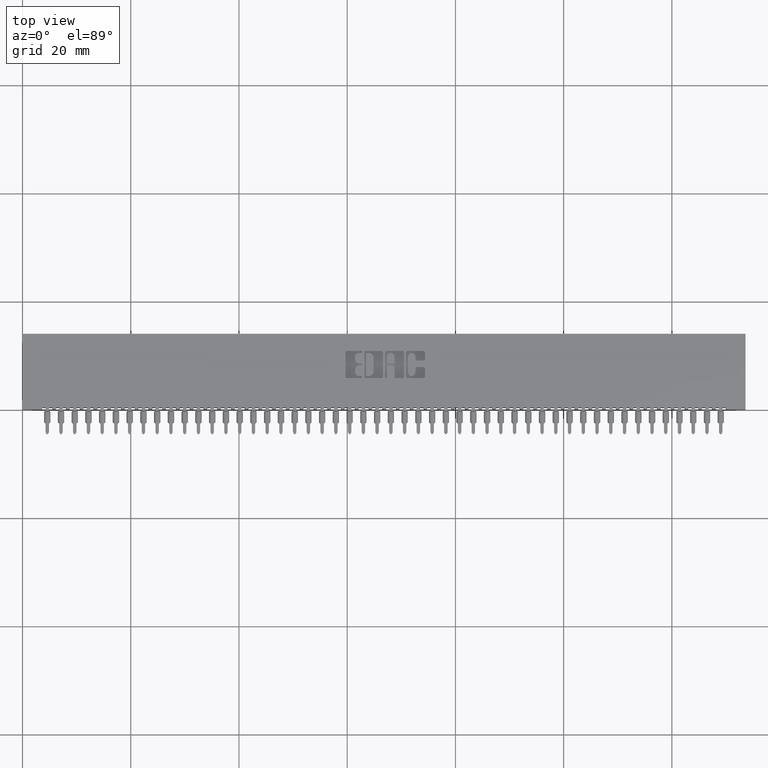
[diagram: clean part render]
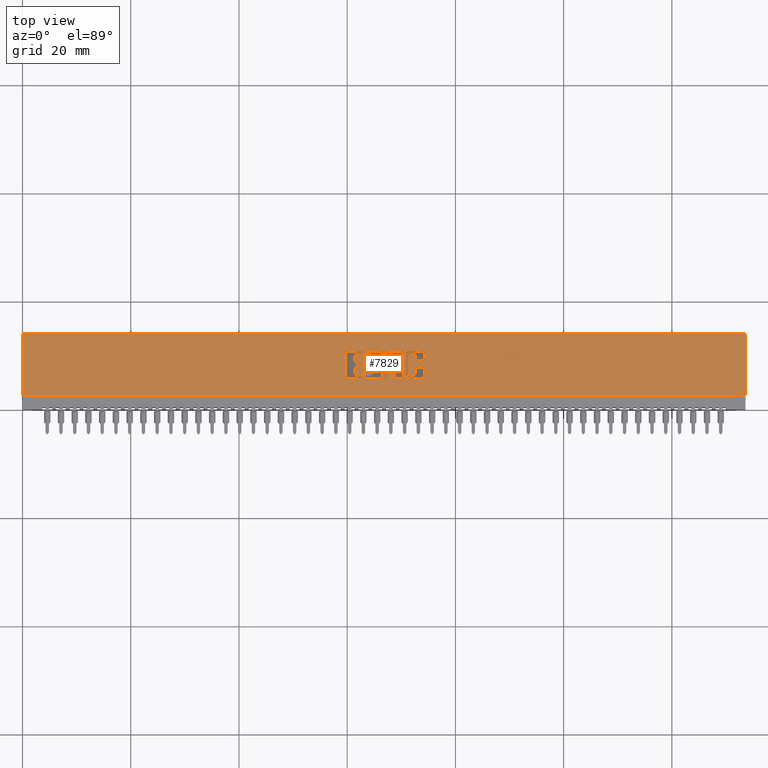
[diagram: same view with one face highlighted and labeled with its STEP entity id]
A machine part, top view. The second image highlights one B-rep face of the part: STEP entity #7829.
In plain terms, the highlighted planar face has unit normal (0, 0, -1).
Its self-contained STEP definition (entity closure, byte-faithful):
#12 = VERTEX_POINT ( 'NONE', #27577 ) ;
#53 = EDGE_CURVE ( 'NONE', #18621, #21375, #10259, .T. ) ;
#67 = LINE ( 'NONE', #48552, #47160 ) ;
#532 = CARTESIAN_POINT ( 'NONE',  ( 2.867293827176977700, 0.3539562271012337000, 0.0000000000000000000 ) ) ;
#541 = EDGE_CURVE ( 'NONE', #45024, #77650, #23202, .T. ) ;
#690 = CIRCLE ( 'NONE', #82809, 0.009815670203841313900 ) ;
#717 = ORIENTED_EDGE ( 'NONE', *, *, #53, .T. ) ;
#791 = LINE ( 'NONE', #67100, #17856 ) ;
#817 = VECTOR ( 'NONE', #43794, 39.37007874015748100 ) ;
#913 = CARTESIAN_POINT ( 'NONE',  ( -0.0000000000000000000, 0.4094147637527357800, 0.0000000000000000000 ) ) ;
#932 = EDGE_CURVE ( 'NONE', #53338, #23581, #74230, .T. ) ;
#1858 = CIRCLE ( 'NONE', #66016, 0.009815670203787221800 ) ;
#1865 = ORIENTED_EDGE ( 'NONE', *, *, #4194, .F. ) ;
#2072 = CARTESIAN_POINT ( 'NONE',  ( 2.916862961706131700, 0.4133410318342110000, 0.0000000000000000000 ) ) ;
#2151 = CIRCLE ( 'NONE', #47221, 0.009815670203806891800 ) ;
#2264 = VERTEX_POINT ( 'NONE', #80862 ) ;
#2414 = EDGE_CURVE ( 'NONE', #7104, #49227, #70977, .T. ) ;
#2612 = DIRECTION ( 'NONE',  ( -0.0000000000000000000, 0.0000000000000000000, 1.000000000000000000 ) ) ;
#2639 = DIRECTION ( 'NONE',  ( 1.000000000000000000, 0.0000000000000000000, 0.0000000000000000000 ) ) ;
#2822 = FACE_BOUND ( 'NONE', #13797, .T. ) ;
#3226 = EDGE_CURVE ( 'NONE', #79059, #74128, #72793, .T. ) ;
#3297 = CARTESIAN_POINT ( 'NONE',  ( 2.638588711428330800, 0.4133410318342102300, 0.0000000000000000000 ) ) ;
#3464 = VECTOR ( 'NONE', #50230, 39.37007874015748100 ) ;
#3738 = DIRECTION ( 'NONE',  ( -1.000000000000000000, -0.0000000000000000000, -0.0000000000000000000 ) ) ;
#3841 = CARTESIAN_POINT ( 'NONE',  ( 2.638588711428330800, 0.2337142671046480400, 0.0000000000000000000 ) ) ;
#3968 = VECTOR ( 'NONE', #35658, 39.37007874015748100 ) ;
#4194 = EDGE_CURVE ( 'NONE', #35465, #41655, #27696, .T. ) ;
#4646 = CARTESIAN_POINT ( 'NONE',  ( 2.867293827176966600, 0.2965345564089696400, 0.0000000000000000000 ) ) ;
#4871 = AXIS2_PLACEMENT_3D ( 'NONE', #4646, #49448, #11138 ) ;
#5083 = CARTESIAN_POINT ( 'NONE',  ( 2.463133606535309500, 0.3250000000000204400, 0.0000000000000000000 ) ) ;
#5296 = CARTESIAN_POINT ( 'NONE',  ( 2.857478156973178900, 0.0000000000000000000, 0.0000000000000000000 ) ) ;
#5301 = VERTEX_POINT ( 'NONE', #82969 ) ;
#5583 = CARTESIAN_POINT ( 'NONE',  ( 5.259999999999999800, 0.1000000000000000100, 0.0000000000000000000 ) ) ;
#5764 = ORIENTED_EDGE ( 'NONE', *, *, #54484, .F. ) ;
#5771 = CIRCLE ( 'NONE', #5782, 0.009815670203806891800 ) ;
#5782 = AXIS2_PLACEMENT_3D ( 'NONE', #52295, #13992, #58752 ) ;
#5790 = CARTESIAN_POINT ( 'NONE',  ( -2.860952991547128200E-014, 0.2405852362470173600, 0.0000000000000000000 ) ) ;
#5810 = DIRECTION ( 'NONE',  ( 0.0000000000000000000, -1.000000000000000000, 0.0000000000000000000 ) ) ;
#6198 = CARTESIAN_POINT ( 'NONE',  ( 2.704844485303985000, 0.3083133606535435300, 0.0000000000000000000 ) ) ;
#6397 = CARTESIAN_POINT ( 'NONE',  ( 2.926678631909940300, 0.2366589681657830500, 0.0000000000000000000 ) ) ;
#6713 = CARTESIAN_POINT ( 'NONE',  ( -0.0000000000000000000, 0.2268432979619832700, 0.0000000000000000000 ) ) ;
#7078 = EDGE_LOOP ( 'NONE', ( #55637, #13725, #54963, #58001, #82972, #23938, #16235, #46470, #33435, #80120, #31734, #37773, #44824, #64606, #70877, #12842, #66960, #76857, #62875, #23127, #57349 ) ) ;
#7104 = VERTEX_POINT ( 'NONE', #82610 ) ;
#7124 = CARTESIAN_POINT ( 'NONE',  ( 2.916862961706133900, 0.2366589681657900200, 0.0000000000000000000 ) ) ;
#7368 = DIRECTION ( 'NONE',  ( -0.0000000000000000000, 0.0000000000000000000, 1.000000000000000000 ) ) ;
#7373 = DIRECTION ( 'NONE',  ( 1.000000000000000000, 0.0000000000000000000, 0.0000000000000000000 ) ) ;
#7394 = AXIS2_PLACEMENT_3D ( 'NONE', #7124, #51905, #13583 ) ;
#7593 = VECTOR ( 'NONE', #45985, 39.37007874015748100 ) ;
#7722 = CIRCLE ( 'NONE', #57889, 0.03141014465215637200 ) ;
#7829 = ADVANCED_FACE ( 'NONE', ( #21894, #70993, #36905, #19911, #2822 ), #44953, .F. ) ;
#7932 = DIRECTION ( 'NONE',  ( -0.0000000000000000000, 0.0000000000000000000, 1.000000000000000000 ) ) ;
#8040 = EDGE_CURVE ( 'NONE', #51241, #36680, #69931, .T. ) ;
#8106 = DIRECTION ( 'NONE',  ( -0.0000000000000000000, 0.0000000000000000000, 1.000000000000000000 ) ) ;
#8199 = CARTESIAN_POINT ( 'NONE',  ( 2.831221239177998500, 0.2668421540424530900, 0.0000000000000000000 ) ) ;
#8286 = CARTESIAN_POINT ( 'NONE',  ( 2.804964321382818600, 0.2668421540424530900, 0.0000000000000000000 ) ) ;
#8418 = EDGE_CURVE ( 'NONE', #60129, #29652, #7722, .T. ) ;
#8521 = DIRECTION ( 'NONE',  ( 1.000000000000000000, 0.0000000000000000000, 0.0000000000000000000 ) ) ;
#9023 = CARTESIAN_POINT ( 'NONE',  ( 0.0000000000000000000, 0.1000000000000000100, 0.0000000000000000000 ) ) ;
#9072 = EDGE_CURVE ( 'NONE', #42786, #65845, #36661, .T. ) ;
#9097 = ORIENTED_EDGE ( 'NONE', *, *, #73817, .F. ) ;
#9268 = EDGE_CURVE ( 'NONE', #24916, #65616, #73709, .T. ) ;
#9449 = DIRECTION ( 'NONE',  ( -0.0000000000000000000, 0.0000000000000000000, 1.000000000000000000 ) ) ;
#9567 = CARTESIAN_POINT ( 'NONE',  ( 2.463133606535351300, 0.4094147637527357800, 0.0000000000000000000 ) ) ;
#10128 = DIRECTION ( 'NONE',  ( -0.0000000000000000000, 0.0000000000000000000, 1.000000000000000000 ) ) ;
#10234 = VERTEX_POINT ( 'NONE', #77711 ) ;
#10259 = CIRCLE ( 'NONE', #42396, 0.02625691779518049900 ) ;
#10367 = AXIS2_PLACEMENT_3D ( 'NONE', #40974, #2612, #47436 ) ;
#10570 = DIRECTION ( 'NONE',  ( -0.0000000000000000000, 0.0000000000000000000, 1.000000000000000000 ) ) ;
#10661 = EDGE_CURVE ( 'NONE', #39530, #12276, #14326, .T. ) ;
#10713 = CARTESIAN_POINT ( 'NONE',  ( 2.804964321382818600, 0.0000000000000000000, 0.0000000000000000000 ) ) ;
#10833 = CARTESIAN_POINT ( 'NONE',  ( 2.463133606535335300, 0.2337142671046480400, 0.0000000000000000000 ) ) ;
#10965 = VERTEX_POINT ( 'NONE', #53738 ) ;
#11013 = ORIENTED_EDGE ( 'NONE', *, *, #932, .F. ) ;
#11017 = VERTEX_POINT ( 'NONE', #28606 ) ;
#11138 = DIRECTION ( 'NONE',  ( 1.000000000000000000, 0.0000000000000000000, 0.0000000000000000000 ) ) ;
#11191 = VERTEX_POINT ( 'NONE', #30498 ) ;
#11411 = CARTESIAN_POINT ( 'NONE',  ( 2.449637060005109400, 0.2405852362473086800, 0.0000000000000000000 ) ) ;
#11527 = CIRCLE ( 'NONE', #64938, 0.009815670203806891800 ) ;
#11572 = DIRECTION ( 'NONE',  ( 1.000000000000000000, 0.0000000000000000000, 0.0000000000000000000 ) ) ;
#11614 = DIRECTION ( 'NONE',  ( 0.0000000000000000000, -1.000000000000000000, 0.0000000000000000000 ) ) ;
#11679 = CIRCLE ( 'NONE', #70595, 0.009815670203795418300 ) ;
#11852 = LINE ( 'NONE', #37381, #817 ) ;
#12076 = VERTEX_POINT ( 'NONE', #53513 ) ;
#12276 = VERTEX_POINT ( 'NONE', #30010 ) ;
#12577 = DIRECTION ( 'NONE',  ( 0.0000000000000000000, -1.000000000000000000, 0.0000000000000000000 ) ) ;
#12650 = ORIENTED_EDGE ( 'NONE', *, *, #58298, .F. ) ;
#12842 = ORIENTED_EDGE ( 'NONE', *, *, #45557, .F. ) ;
#12917 = LINE ( 'NONE', #38828, #44931 ) ;
#12973 = EDGE_CURVE ( 'NONE', #36680, #51058, #55690, .T. ) ;
#12979 = EDGE_CURVE ( 'NONE', #17987, #68958, #38685, .T. ) ;
#13010 = EDGE_LOOP ( 'NONE', ( #32709, #71527, #58701, #66828, #39765, #34679, #82830, #11013 ) ) ;
#13047 = LINE ( 'NONE', #6713, #28106 ) ;
#13176 = DIRECTION ( 'NONE',  ( 1.000000000000000000, 0.0000000000000000000, 0.0000000000000000000 ) ) ;
#13583 = DIRECTION ( 'NONE',  ( 1.000000000000000000, 0.0000000000000000000, 0.0000000000000000000 ) ) ;
#13639 = DIRECTION ( 'NONE',  ( -0.0000000000000000000, -1.000000000000000000, -0.0000000000000000000 ) ) ;
#13725 = ORIENTED_EDGE ( 'NONE', *, *, #66081, .F. ) ;
#13777 = DIRECTION ( 'NONE',  ( -0.0000000000000000000, 0.0000000000000000000, 1.000000000000000000 ) ) ;
#13797 = EDGE_LOOP ( 'NONE', ( #68317, #41214, #19842, #12650, #66624, #20623, #16892, #37168, #52639, #63734, #26588, #21617, #81145, #43163 ) ) ;
#13808 = CARTESIAN_POINT ( 'NONE',  ( 2.611595618367896300, 0.4231567020380511100, 0.0000000000000000000 ) ) ;
#13917 = CARTESIAN_POINT ( 'NONE',  ( 2.648404381632127400, 0.4133410318342102300, 0.0000000000000000000 ) ) ;
#13959 = CARTESIAN_POINT ( 'NONE',  ( 5.259999999999999800, 0.5500000000000000400, 0.0000000000000000000 ) ) ;
#13992 = DIRECTION ( 'NONE',  ( -0.0000000000000000000, 0.0000000000000000000, 1.000000000000000000 ) ) ;
#14057 = EDGE_CURVE ( 'NONE', #18621, #10965, #70709, .T. ) ;
#14081 = CARTESIAN_POINT ( 'NONE',  ( 0.0000000000000000000, 0.5500000000000000400, 0.0000000000000000000 ) ) ;
#14295 = CARTESIAN_POINT ( 'NONE',  ( 2.648404381632127400, 0.4231567020380067000, 0.0000000000000000000 ) ) ;
#14299 = EDGE_CURVE ( 'NONE', #74243, #30661, #69656, .T. ) ;
#14326 = LINE ( 'NONE', #50408, #46379 ) ;
#14327 = VERTEX_POINT ( 'NONE', #32493 ) ;
#14352 = AXIS2_PLACEMENT_3D ( 'NONE', #69479, #31129, #75936 ) ;
#14417 = EDGE_CURVE ( 'NONE', #21115, #65845, #57560, .T. ) ;
#14697 = VERTEX_POINT ( 'NONE', #16105 ) ;
#14714 = ORIENTED_EDGE ( 'NONE', *, *, #26605, .F. ) ;
#15046 = ORIENTED_EDGE ( 'NONE', *, *, #60041, .F. ) ;
#15194 = VECTOR ( 'NONE', #3738, 39.37007874015748100 ) ;
#15357 = VERTEX_POINT ( 'NONE', #16271 ) ;
#15585 = LINE ( 'NONE', #35336, #81683 ) ;
#16105 = CARTESIAN_POINT ( 'NONE',  ( 2.485955039759169000, 0.4133410318342102300, 0.0000000000000000000 ) ) ;
#16235 = ORIENTED_EDGE ( 'NONE', *, *, #16549, .F. ) ;
#16271 = CARTESIAN_POINT ( 'NONE',  ( 2.463133606535351300, 0.4231567020380327900, 0.0000000000000000000 ) ) ;
#16539 = VECTOR ( 'NONE', #50088, 39.37007874015748100 ) ;
#16549 = EDGE_CURVE ( 'NONE', #60129, #17131, #67, .T. ) ;
#16552 = VECTOR ( 'NONE', #31954, 39.37007874015748100 ) ;
#16892 = ORIENTED_EDGE ( 'NONE', *, *, #67808, .T. ) ;
#16965 = AXIS2_PLACEMENT_3D ( 'NONE', #48924, #10570, #55310 ) ;
#17012 = EDGE_CURVE ( 'NONE', #11017, #55537, #17054, .T. ) ;
#17054 = LINE ( 'NONE', #913, #7593 ) ;
#17131 = VERTEX_POINT ( 'NONE', #28366 ) ;
#17150 = DIRECTION ( 'NONE',  ( 0.0000000000000000000, 1.000000000000000000, -0.0000000000000000000 ) ) ;
#17159 = CARTESIAN_POINT ( 'NONE',  ( 2.764229290037011600, 0.4133410318342105000, 0.0000000000000000000 ) ) ;
#17183 = CIRCLE ( 'NONE', #31061, 0.009815670203795964800 ) ;
#17258 = DIRECTION ( 'NONE',  ( 1.000000000000000000, 0.0000000000000000000, 0.0000000000000000000 ) ) ;
#17403 = CARTESIAN_POINT ( 'NONE',  ( 5.259999999999999800, 0.5500000000000000400, 0.0000000000000000000 ) ) ;
#17628 = VERTEX_POINT ( 'NONE', #74832 ) ;
#17678 = EDGE_CURVE ( 'NONE', #30661, #53338, #33719, .T. ) ;
#17856 = VECTOR ( 'NONE', #28766, 39.37007874015748100 ) ;
#17987 = VERTEX_POINT ( 'NONE', #21041 ) ;
#18357 = CARTESIAN_POINT ( 'NONE',  ( 2.857478156973178900, 0.2965345564089687500, 0.0000000000000000000 ) ) ;
#18489 = EDGE_CURVE ( 'NONE', #61355, #11191, #62599, .T. ) ;
#18621 = VERTEX_POINT ( 'NONE', #8286 ) ;
#18719 = AXIS2_PLACEMENT_3D ( 'NONE', #70868, #32474, #77298 ) ;
#18931 = ORIENTED_EDGE ( 'NONE', *, *, #54984, .F. ) ;
#19194 = VERTEX_POINT ( 'NONE', #20299 ) ;
#19216 = EDGE_LOOP ( 'NONE', ( #19325, #18931, #38630, #76746 ) ) ;
#19325 = ORIENTED_EDGE ( 'NONE', *, *, #54481, .T. ) ;
#19500 = VERTEX_POINT ( 'NONE', #42294 ) ;
#19530 = CARTESIAN_POINT ( 'NONE',  ( 0.0000000000000000000, 0.5500000000000000400, 0.0000000000000000000 ) ) ;
#19541 = CARTESIAN_POINT ( 'NONE',  ( 2.704844485303985000, 0.2366589681657879100, 0.0000000000000000000 ) ) ;
#19721 = VECTOR ( 'NONE', #22489, 39.37007874015748100 ) ;
#19828 = DIRECTION ( 'NONE',  ( 0.0000000000000000000, -1.000000000000000000, 0.0000000000000000000 ) ) ;
#19842 = ORIENTED_EDGE ( 'NONE', *, *, #55106, .T. ) ;
#19911 = FACE_BOUND ( 'NONE', #13010, .T. ) ;
#20299 = CARTESIAN_POINT ( 'NONE',  ( 2.916862961706133900, 0.2268432979619832700, 0.0000000000000000000 ) ) ;
#20363 = DIRECTION ( 'NONE',  ( 1.000000000000000000, 0.0000000000000000000, 0.0000000000000000000 ) ) ;
#20594 = VECTOR ( 'NONE', #40066, 39.37007874015748100 ) ;
#20623 = ORIENTED_EDGE ( 'NONE', *, *, #9072, .F. ) ;
#20857 = LINE ( 'NONE', #53065, #69925 ) ;
#21041 = CARTESIAN_POINT ( 'NONE',  ( 2.652330649713647000, 0.3083133606535456400, 0.0000000000000000000 ) ) ;
#21115 = VERTEX_POINT ( 'NONE', #61138 ) ;
#21375 = VERTEX_POINT ( 'NONE', #70101 ) ;
#21617 = ORIENTED_EDGE ( 'NONE', *, *, #77831, .F. ) ;
#21689 = VECTOR ( 'NONE', #69976, 39.37007874015748100 ) ;
#21894 = FACE_BOUND ( 'NONE', #39366, .T. ) ;
#22489 = DIRECTION ( 'NONE',  ( 0.0000000000000000000, 1.000000000000000000, -0.0000000000000000000 ) ) ;
#22514 = VERTEX_POINT ( 'NONE', #70218 ) ;
#22600 = CARTESIAN_POINT ( 'NONE',  ( 2.470004575677999800, 0.4162857328953863400, 0.0000000000000000000 ) ) ;
#23127 = ORIENTED_EDGE ( 'NONE', *, *, #70909, .F. ) ;
#23188 = DIRECTION ( 'NONE',  ( -0.0000000000000000000, 0.0000000000000000000, 1.000000000000000000 ) ) ;
#23202 = CIRCLE ( 'NONE', #4871, 0.009815670203787768200 ) ;
#23275 = CIRCLE ( 'NONE', #64302, 0.006870969142662365600 ) ;
#23581 = VERTEX_POINT ( 'NONE', #77008 ) ;
#23586 = DIRECTION ( 'NONE',  ( 1.000000000000000000, 0.0000000000000000000, 0.0000000000000000000 ) ) ;
#23767 = AXIS2_PLACEMENT_3D ( 'NONE', #66552, #28226, #73002 ) ;
#23803 = CIRCLE ( 'NONE', #18719, 0.009815670203805252500 ) ;
#23849 = ORIENTED_EDGE ( 'NONE', *, *, #541, .F. ) ;
#23938 = ORIENTED_EDGE ( 'NONE', *, *, #48788, .F. ) ;
#24065 = VERTEX_POINT ( 'NONE', #30429 ) ;
#24148 = CIRCLE ( 'NONE', #58250, 0.009815670203840221000 ) ;
#24395 = DIRECTION ( 'NONE',  ( -0.0000000000000000000, 0.0000000000000000000, 1.000000000000000000 ) ) ;
#24520 = ORIENTED_EDGE ( 'NONE', *, *, #72817, .F. ) ;
#24586 = LINE ( 'NONE', #17403, #39567 ) ;
#24644 = LINE ( 'NONE', #75506, #58679 ) ;
#24905 = DIRECTION ( 'NONE',  ( -0.0000000000000000000, 0.0000000000000000000, 1.000000000000000000 ) ) ;
#24916 = VERTEX_POINT ( 'NONE', #32534 ) ;
#24959 = DIRECTION ( 'NONE',  ( -0.0000000000000000000, 0.0000000000000000000, 1.000000000000000000 ) ) ;
#24987 = CARTESIAN_POINT ( 'NONE',  ( 2.418226915352909700, 0.3780046191005198600, 0.0000000000000000000 ) ) ;
#25189 = AXIS2_PLACEMENT_3D ( 'NONE', #79364, #40997, #2639 ) ;
#25586 = DIRECTION ( 'NONE',  ( -0.0000000000000000000, 0.0000000000000000000, 1.000000000000000000 ) ) ;
#25623 = VERTEX_POINT ( 'NONE', #65523 ) ;
#25742 = EDGE_CURVE ( 'NONE', #70202, #12076, #43314, .T. ) ;
#25778 = CARTESIAN_POINT ( 'NONE',  ( 2.867293827176966600, 0.3063502266127576300, 0.0000000000000000000 ) ) ;
#25985 = DIRECTION ( 'NONE',  ( -1.000000000000000000, 0.0000000000000000000, -0.0000000000000000000 ) ) ;
#26166 = EDGE_CURVE ( 'NONE', #22514, #49227, #58257, .T. ) ;
#26202 = VERTEX_POINT ( 'NONE', #49181 ) ;
#26588 = ORIENTED_EDGE ( 'NONE', *, *, #12979, .T. ) ;
#26592 = LINE ( 'NONE', #43815, #3464 ) ;
#26605 = EDGE_CURVE ( 'NONE', #11191, #62598, #24148, .T. ) ;
#26846 = CARTESIAN_POINT ( 'NONE',  ( 2.916862961706156600, 0.3063502266127576300, 0.0000000000000000000 ) ) ;
#27577 = CARTESIAN_POINT ( 'NONE',  ( 2.801038053301265300, 0.2268432979619832700, 0.0000000000000000000 ) ) ;
#27696 = LINE ( 'NONE', #72209, #76750 ) ;
#27809 = DIRECTION ( 'NONE',  ( -0.0000000000000000000, 0.0000000000000000000, 1.000000000000000000 ) ) ;
#28014 = VERTEX_POINT ( 'NONE', #22600 ) ;
#28106 = VECTOR ( 'NONE', #13176, 39.37007874015748100 ) ;
#28226 = DIRECTION ( 'NONE',  ( -0.0000000000000000000, 0.0000000000000000000, 1.000000000000000000 ) ) ;
#28287 = CARTESIAN_POINT ( 'NONE',  ( -0.0000000000000000000, 0.2268432979619832700, 0.0000000000000000000 ) ) ;
#28366 = CARTESIAN_POINT ( 'NONE',  ( 2.463133606415388600, 0.3181290308573568900, 0.0000000000000000000 ) ) ;
#28606 = CARTESIAN_POINT ( 'NONE',  ( 2.449637060005125400, 0.4094147637527357800, 0.0000000000000000000 ) ) ;
#28760 = DIRECTION ( 'NONE',  ( -0.0000000000000000000, 0.0000000000000000000, 1.000000000000000000 ) ) ;
#28766 = DIRECTION ( 'NONE',  ( 1.000000000000000000, 0.0000000000000000000, 0.0000000000000000000 ) ) ;
#28922 = CARTESIAN_POINT ( 'NONE',  ( 2.621411288571669400, 0.4133410318342102300, 0.0000000000000000000 ) ) ;
#29222 = AXIS2_PLACEMENT_3D ( 'NONE', #13917, #58673, #20363 ) ;
#29233 = CARTESIAN_POINT ( 'NONE',  ( 2.704844485303985000, 0.0000000000000000000, 0.0000000000000000000 ) ) ;
#29652 = VERTEX_POINT ( 'NONE', #37729 ) ;
#29784 = EDGE_CURVE ( 'NONE', #15357, #19500, #12917, .T. ) ;
#30010 = CARTESIAN_POINT ( 'NONE',  ( 2.764229290037013800, 0.4231567020380067000, 0.0000000000000000000 ) ) ;
#30429 = CARTESIAN_POINT ( 'NONE',  ( 2.349026440416115400, 0.4133410318342102300, 0.0000000000000000000 ) ) ;
#30498 = CARTESIAN_POINT ( 'NONE',  ( 2.926678631909972200, 0.4133410318341949100, 0.0000000000000000000 ) ) ;
#30592 = VERTEX_POINT ( 'NONE', #40347 ) ;
#30661 = VERTEX_POINT ( 'NONE', #28922 ) ;
#31038 = CARTESIAN_POINT ( 'NONE',  ( 2.485955039759169000, 0.2366589681657900200, 0.0000000000000000000 ) ) ;
#31061 = AXIS2_PLACEMENT_3D ( 'NONE', #74592, #36225, #81026 ) ;
#31110 = AXIS2_PLACEMENT_3D ( 'NONE', #66131, #27809, #72564 ) ;
#31129 = DIRECTION ( 'NONE',  ( -0.0000000000000000000, 0.0000000000000000000, 1.000000000000000000 ) ) ;
#31278 = DIRECTION ( 'NONE',  ( -1.000000000000000000, -1.189163988687022500E-013, 0.0000000000000000000 ) ) ;
#31456 = EDGE_CURVE ( 'NONE', #5301, #10234, #690, .T. ) ;
#31734 = ORIENTED_EDGE ( 'NONE', *, *, #2414, .F. ) ;
#31919 = DIRECTION ( 'NONE',  ( -1.000000000000000000, 0.0000000000000000000, 0.0000000000000000000 ) ) ;
#31954 = DIRECTION ( 'NONE',  ( 0.0000000000000000000, 1.000000000000000000, -0.0000000000000000000 ) ) ;
#32305 = EDGE_CURVE ( 'NONE', #14327, #24916, #15585, .T. ) ;
#32436 = EDGE_CURVE ( 'NONE', #52242, #56336, #24586, .T. ) ;
#32474 = DIRECTION ( 'NONE',  ( -0.0000000000000000000, 0.0000000000000000000, 1.000000000000000000 ) ) ;
#32493 = CARTESIAN_POINT ( 'NONE',  ( 2.857478156973166000, 0.3831578454992600200, 0.0000000000000000000 ) ) ;
#32534 = CARTESIAN_POINT ( 'NONE',  ( 2.857478156973166000, 0.3637718973050452800, 0.0000000000000000000 ) ) ;
#32646 = CARTESIAN_POINT ( 'NONE',  ( 2.485955039759169000, 0.0000000000000000000, 0.0000000000000000000 ) ) ;
#32709 = ORIENTED_EDGE ( 'NONE', *, *, #17678, .F. ) ;
#32823 = VERTEX_POINT ( 'NONE', #59581 ) ;
#33046 = ORIENTED_EDGE ( 'NONE', *, *, #76600, .F. ) ;
#33316 = EDGE_CURVE ( 'NONE', #14697, #38122, #52416, .T. ) ;
#33435 = ORIENTED_EDGE ( 'NONE', *, *, #77627, .F. ) ;
#33719 = CIRCLE ( 'NONE', #14352, 0.009815670203841313900 ) ;
#33797 = CARTESIAN_POINT ( 'NONE',  ( 2.449637060005125400, 0.3780046191005198600, 0.0000000000000000000 ) ) ;
#34064 = ORIENTED_EDGE ( 'NONE', *, *, #73421, .F. ) ;
#34679 = ORIENTED_EDGE ( 'NONE', *, *, #33316, .F. ) ;
#34784 = CARTESIAN_POINT ( 'NONE',  ( 2.463133606535351300, 0.4162857328953863400, 0.0000000000000000000 ) ) ;
#35086 = EDGE_CURVE ( 'NONE', #28014, #15357, #44077, .T. ) ;
#35315 = CARTESIAN_POINT ( 'NONE',  ( 2.349026440416115400, 0.2366589681657900200, 0.0000000000000000000 ) ) ;
#35336 = CARTESIAN_POINT ( 'NONE',  ( 2.857478156973166000, 0.0000000000000000000, 0.0000000000000000000 ) ) ;
#35427 = EDGE_CURVE ( 'NONE', #30592, #2264, #62905, .T. ) ;
#35465 = VERTEX_POINT ( 'NONE', #6397 ) ;
#35552 = EDGE_CURVE ( 'NONE', #38122, #70202, #5771, .T. ) ;
#35658 = DIRECTION ( 'NONE',  ( 0.0000000000000000000, 1.000000000000000000, -0.0000000000000000000 ) ) ;
#35680 = DIRECTION ( 'NONE',  ( -0.0000000000000000000, 0.0000000000000000000, 1.000000000000000000 ) ) ;
#35938 = CARTESIAN_POINT ( 'NONE',  ( 2.916862961706153000, 0.2965345564089705300, 0.0000000000000000000 ) ) ;
#36138 = EDGE_CURVE ( 'NONE', #11017, #61910, #42714, .T. ) ;
#36225 = DIRECTION ( 'NONE',  ( -0.0000000000000000000, 0.0000000000000000000, 1.000000000000000000 ) ) ;
#36391 = CARTESIAN_POINT ( 'NONE',  ( 2.867293827176977700, 0.3637718973050452800, 0.0000000000000000000 ) ) ;
#36661 = CIRCLE ( 'NONE', #63282, 0.009815670203803066700 ) ;
#36680 = VERTEX_POINT ( 'NONE', #77661 ) ;
#36761 = CIRCLE ( 'NONE', #41495, 0.009815670203803066700 ) ;
#36905 = FACE_OUTER_BOUND ( 'NONE', #19216, .T. ) ;
#37129 = EDGE_CURVE ( 'NONE', #23581, #14697, #69763, .T. ) ;
#37165 = DIRECTION ( 'NONE',  ( 0.0000000000000000000, 1.000000000000000000, -0.0000000000000000000 ) ) ;
#37168 = ORIENTED_EDGE ( 'NONE', *, *, #41884, .T. ) ;
#37344 = AXIS2_PLACEMENT_3D ( 'NONE', #63273, #24959, #69734 ) ;
#37381 = CARTESIAN_POINT ( 'NONE',  ( 2.418226915352927900, 0.0000000000000000000, 0.0000000000000000000 ) ) ;
#37729 = CARTESIAN_POINT ( 'NONE',  ( 2.418226915352927900, 0.2867188862052006400, 0.0000000000000000000 ) ) ;
#37744 = EDGE_CURVE ( 'NONE', #12076, #74243, #11527, .T. ) ;
#37773 = ORIENTED_EDGE ( 'NONE', *, *, #57800, .F. ) ;
#37946 = CIRCLE ( 'NONE', #29222, 0.009815670203796511200 ) ;
#38038 = CARTESIAN_POINT ( 'NONE',  ( -1.634053534411927400E-015, 0.2268432979619680300, 0.0000000000000000000 ) ) ;
#38122 = VERTEX_POINT ( 'NONE', #31038 ) ;
#38630 = ORIENTED_EDGE ( 'NONE', *, *, #32436, .F. ) ;
#38685 = LINE ( 'NONE', #82851, #70789 ) ;
#38828 = CARTESIAN_POINT ( 'NONE',  ( 0.0000000000000000000, 0.4231567020380327900, 0.0000000000000000000 ) ) ;
#39023 = AXIS2_PLACEMENT_3D ( 'NONE', #34784, #79557, #41187 ) ;
#39366 = EDGE_LOOP ( 'NONE', ( #9097, #81542, #50477, #70327, #49960, #54839, #717, #78816, #23849, #78148, #15046, #1865, #34064, #33046, #49394, #24520, #77241, #5764, #14714, #72021 ) ) ;
#39530 = VERTEX_POINT ( 'NONE', #14295 ) ;
#39567 = VECTOR ( 'NONE', #68625, 39.37007874015748100 ) ;
#39765 = ORIENTED_EDGE ( 'NONE', *, *, #35552, .F. ) ;
#40066 = DIRECTION ( 'NONE',  ( -1.000000000000000000, -3.530861605407645300E-014, 0.0000000000000000000 ) ) ;
#40116 = LINE ( 'NONE', #14081, #72224 ) ;
#40184 = DIRECTION ( 'NONE',  ( 1.000000000000000000, 0.0000000000000000000, 0.0000000000000000000 ) ) ;
#40295 = VECTOR ( 'NONE', #13639, 39.37007874015748100 ) ;
#40347 = CARTESIAN_POINT ( 'NONE',  ( 2.463133606535309500, 0.3318709691426839900, 0.0000000000000000000 ) ) ;
#40523 = VECTOR ( 'NONE', #71430, 39.37007874015748100 ) ;
#40974 = CARTESIAN_POINT ( 'NONE',  ( 2.449637060005084100, 0.3632811137948584500, 0.0000000000000000000 ) ) ;
#40997 = DIRECTION ( 'NONE',  ( -0.0000000000000000000, 0.0000000000000000000, 1.000000000000000000 ) ) ;
#41187 = DIRECTION ( 'NONE',  ( 1.000000000000000000, 0.0000000000000000000, 0.0000000000000000000 ) ) ;
#41202 = VERTEX_POINT ( 'NONE', #54171 ) ;
#41204 = VECTOR ( 'NONE', #11614, 39.37007874015748100 ) ;
#41214 = ORIENTED_EDGE ( 'NONE', *, *, #70512, .F. ) ;
#41495 = AXIS2_PLACEMENT_3D ( 'NONE', #61516, #23188, #68005 ) ;
#41571 = CARTESIAN_POINT ( 'NONE',  ( 0.0000000000000000000, 0.4231567020380511100, 0.0000000000000000000 ) ) ;
#41655 = VERTEX_POINT ( 'NONE', #52411 ) ;
#41884 = EDGE_CURVE ( 'NONE', #60217, #76516, #44103, .T. ) ;
#42294 = CARTESIAN_POINT ( 'NONE',  ( 2.358842110619938200, 0.4231567020380327900, 0.0000000000000000000 ) ) ;
#42332 = DIRECTION ( 'NONE',  ( 1.000000000000000000, 0.0000000000000000000, 0.0000000000000000000 ) ) ;
#42396 = AXIS2_PLACEMENT_3D ( 'NONE', #8199, #7932, #7373 ) ;
#42714 = CIRCLE ( 'NONE', #77197, 0.03141014465221592800 ) ;
#42786 = VERTEX_POINT ( 'NONE', #19541 ) ;
#42829 = DIRECTION ( 'NONE',  ( 1.000000000000000000, 0.0000000000000000000, 0.0000000000000000000 ) ) ;
#42859 = EDGE_CURVE ( 'NONE', #39530, #74128, #37946, .T. ) ;
#43163 = ORIENTED_EDGE ( 'NONE', *, *, #42859, .F. ) ;
#43314 = LINE ( 'NONE', #28287, #75392 ) ;
#43794 = DIRECTION ( 'NONE',  ( 0.0000000000000000000, 1.000000000000000000, -0.0000000000000000000 ) ) ;
#43815 = CARTESIAN_POINT ( 'NONE',  ( 2.349026440416115400, 0.0000000000000000000, 0.0000000000000000000 ) ) ;
#43891 = CARTESIAN_POINT ( 'NONE',  ( 2.916862961706168500, 0.4231567020380511100, 0.0000000000000000000 ) ) ;
#44077 = CIRCLE ( 'NONE', #39023, 0.006870969142648706400 ) ;
#44103 = CIRCLE ( 'NONE', #78504, 0.009815670203797057700 ) ;
#44317 = VECTOR ( 'NONE', #58130, 39.37007874015748100 ) ;
#44824 = ORIENTED_EDGE ( 'NONE', *, *, #77363, .F. ) ;
#44931 = VECTOR ( 'NONE', #51681, 39.37007874015748100 ) ;
#44953 = PLANE ( 'NONE',  #69694 ) ;
#45000 = DIRECTION ( 'NONE',  ( 0.0000000000000000000, 1.000000000000000000, -0.0000000000000000000 ) ) ;
#45024 = VERTEX_POINT ( 'NONE', #25778 ) ;
#45557 = EDGE_CURVE ( 'NONE', #24065, #51241, #26592, .T. ) ;
#45728 = CARTESIAN_POINT ( 'NONE',  ( 2.645459680570987300, 0.2337142671046480400, 0.0000000000000000000 ) ) ;
#45985 = DIRECTION ( 'NONE',  ( 1.000000000000000000, 0.0000000000000000000, 0.0000000000000000000 ) ) ;
#46379 = VECTOR ( 'NONE', #63326, 39.37007874015748100 ) ;
#46470 = ORIENTED_EDGE ( 'NONE', *, *, #8418, .T. ) ;
#46479 = CARTESIAN_POINT ( 'NONE',  ( 2.611595618367861700, 0.2366589681657900200, 0.0000000000000000000 ) ) ;
#46860 = CIRCLE ( 'NONE', #69469, 0.02625691779517394200 ) ;
#46903 = DIRECTION ( 'NONE',  ( -0.0000000000000000000, 0.0000000000000000000, 1.000000000000000000 ) ) ;
#47160 = VECTOR ( 'NONE', #54971, 39.37007874015748100 ) ;
#47199 = EDGE_CURVE ( 'NONE', #76516, #65513, #71672, .T. ) ;
#47221 = AXIS2_PLACEMENT_3D ( 'NONE', #74058, #35680, #80462 ) ;
#47436 = DIRECTION ( 'NONE',  ( 1.000000000000000000, 0.0000000000000000000, 0.0000000000000000000 ) ) ;
#47773 = VERTEX_POINT ( 'NONE', #78081 ) ;
#47811 = CARTESIAN_POINT ( 'NONE',  ( 2.463133606535351300, 0.4162857328953863400, 0.0000000000000000000 ) ) ;
#47920 = AXIS2_PLACEMENT_3D ( 'NONE', #45728, #7368, #52165 ) ;
#48103 = CIRCLE ( 'NONE', #10367, 0.03141014465217440600 ) ;
#48342 = VERTEX_POINT ( 'NONE', #64840 ) ;
#48470 = CARTESIAN_POINT ( 'NONE',  ( 2.695028815100188000, 0.3083133606535528600, 0.0000000000000000000 ) ) ;
#48552 = CARTESIAN_POINT ( 'NONE',  ( -0.0000000000000000000, 0.3181290308573568900, 0.0000000000000000000 ) ) ;
#48788 = EDGE_CURVE ( 'NONE', #17131, #17628, #61437, .T. ) ;
#48924 = CARTESIAN_POINT ( 'NONE',  ( 2.449637060005109400, 0.2719953808994904900, 0.0000000000000000000 ) ) ;
#49181 = CARTESIAN_POINT ( 'NONE',  ( 2.791222383097458100, 0.2366589681657900200, 0.0000000000000000000 ) ) ;
#49227 = VERTEX_POINT ( 'NONE', #11411 ) ;
#49394 = ORIENTED_EDGE ( 'NONE', *, *, #49714, .F. ) ;
#49448 = DIRECTION ( 'NONE',  ( -0.0000000000000000000, 0.0000000000000000000, 1.000000000000000000 ) ) ;
#49714 = EDGE_CURVE ( 'NONE', #26202, #12, #2151, .T. ) ;
#49889 = DIRECTION ( 'NONE',  ( -0.0000000000000000000, 0.0000000000000000000, 1.000000000000000000 ) ) ;
#49922 = CARTESIAN_POINT ( 'NONE',  ( 2.774044960240806400, 0.0000000000000000000, 0.0000000000000000000 ) ) ;
#49960 = ORIENTED_EDGE ( 'NONE', *, *, #69863, .T. ) ;
#50088 = DIRECTION ( 'NONE',  ( 0.0000000000000000000, -1.000000000000000000, 0.0000000000000000000 ) ) ;
#50230 = DIRECTION ( 'NONE',  ( 0.0000000000000000000, -1.000000000000000000, 0.0000000000000000000 ) ) ;
#50408 = CARTESIAN_POINT ( 'NONE',  ( -0.0000000000000000000, 0.4231567020380067000, 0.0000000000000000000 ) ) ;
#50477 = ORIENTED_EDGE ( 'NONE', *, *, #9268, .F. ) ;
#50502 = VERTEX_POINT ( 'NONE', #52450 ) ;
#50571 = CARTESIAN_POINT ( 'NONE',  ( 2.791222383097458100, 0.0000000000000000000, 0.0000000000000000000 ) ) ;
#50631 = CARTESIAN_POINT ( 'NONE',  ( 2.662146319917449800, 0.3181290308573487300, 0.0000000000000000000 ) ) ;
#51058 = VERTEX_POINT ( 'NONE', #70609 ) ;
#51215 = LINE ( 'NONE', #80482, #15194 ) ;
#51241 = VERTEX_POINT ( 'NONE', #35315 ) ;
#51613 = VECTOR ( 'NONE', #17150, 39.37007874015748100 ) ;
#51681 = DIRECTION ( 'NONE',  ( -1.000000000000000000, 0.0000000000000000000, 0.0000000000000000000 ) ) ;
#51905 = DIRECTION ( 'NONE',  ( -0.0000000000000000000, 0.0000000000000000000, 1.000000000000000000 ) ) ;
#51988 = AXIS2_PLACEMENT_3D ( 'NONE', #5083, #49889, #11572 ) ;
#52089 = CARTESIAN_POINT ( 'NONE',  ( 2.714660155507787800, 0.2366589681657879100, 0.0000000000000000000 ) ) ;
#52165 = DIRECTION ( 'NONE',  ( 1.000000000000000000, 0.0000000000000000000, 0.0000000000000000000 ) ) ;
#52242 = VERTEX_POINT ( 'NONE', #13959 ) ;
#52295 = CARTESIAN_POINT ( 'NONE',  ( 2.495770709962976200, 0.2366589681657900200, 0.0000000000000000000 ) ) ;
#52387 = DIRECTION ( 'NONE',  ( 1.000000000000000000, 0.0000000000000000000, 0.0000000000000000000 ) ) ;
#52411 = CARTESIAN_POINT ( 'NONE',  ( 2.926678631909940300, 0.2965345564089705300, 0.0000000000000000000 ) ) ;
#52416 = LINE ( 'NONE', #32646, #69473 ) ;
#52450 = CARTESIAN_POINT ( 'NONE',  ( 2.916862961706166800, 0.3539562271012335300, 0.0000000000000000000 ) ) ;
#52639 = ORIENTED_EDGE ( 'NONE', *, *, #47199, .T. ) ;
#52896 = DIRECTION ( 'NONE',  ( 1.000000000000000000, 0.0000000000000000000, 0.0000000000000000000 ) ) ;
#53065 = CARTESIAN_POINT ( 'NONE',  ( 0.0000000000000000000, 0.3063502266127576300, 0.0000000000000000000 ) ) ;
#53338 = VERTEX_POINT ( 'NONE', #13808 ) ;
#53513 = CARTESIAN_POINT ( 'NONE',  ( 2.611595618367861700, 0.2268432979619832700, 0.0000000000000000000 ) ) ;
#53738 = CARTESIAN_POINT ( 'NONE',  ( 2.804964321382818600, 0.3831578459575297200, 0.0000000000000000000 ) ) ;
#53876 = VECTOR ( 'NONE', #31278, 39.37007874015748100 ) ;
#54171 = CARTESIAN_POINT ( 'NONE',  ( 2.774044960240806400, 0.4133410318342010700, 0.0000000000000000000 ) ) ;
#54200 = LINE ( 'NONE', #49922, #41204 ) ;
#54207 = DIRECTION ( 'NONE',  ( 1.000000000000000000, 0.0000000000000000000, 0.0000000000000000000 ) ) ;
#54433 = DIRECTION ( 'NONE',  ( -1.000000000000000000, 0.0000000000000000000, 0.0000000000000000000 ) ) ;
#54481 = EDGE_CURVE ( 'NONE', #48342, #65221, #57322, .T. ) ;
#54484 = EDGE_CURVE ( 'NONE', #62598, #5301, #74379, .T. ) ;
#54839 = ORIENTED_EDGE ( 'NONE', *, *, #14057, .F. ) ;
#54902 = DIRECTION ( 'NONE',  ( 1.000000000000000000, 0.0000000000000000000, 0.0000000000000000000 ) ) ;
#54963 = ORIENTED_EDGE ( 'NONE', *, *, #67690, .T. ) ;
#54971 = DIRECTION ( 'NONE',  ( 1.000000000000000000, 0.0000000000000000000, 0.0000000000000000000 ) ) ;
#54984 = EDGE_CURVE ( 'NONE', #56336, #65221, #51215, .T. ) ;
#55106 = EDGE_CURVE ( 'NONE', #41202, #47773, #54200, .T. ) ;
#55310 = DIRECTION ( 'NONE',  ( 1.000000000000000000, 0.0000000000000000000, 0.0000000000000000000 ) ) ;
#55537 = VERTEX_POINT ( 'NONE', #9567 ) ;
#55570 = DIRECTION ( 'NONE',  ( -0.0000000000000000000, 0.0000000000000000000, 1.000000000000000000 ) ) ;
#55637 = ORIENTED_EDGE ( 'NONE', *, *, #36138, .T. ) ;
#55690 = LINE ( 'NONE', #38038, #21689 ) ;
#56314 = EDGE_CURVE ( 'NONE', #77650, #21375, #82662, .T. ) ;
#56336 = VERTEX_POINT ( 'NONE', #5583 ) ;
#57148 = VECTOR ( 'NONE', #54433, 39.37007874015748100 ) ;
#57322 = LINE ( 'NONE', #77472, #40295 ) ;
#57349 = ORIENTED_EDGE ( 'NONE', *, *, #17012, .F. ) ;
#57369 = AXIS2_PLACEMENT_3D ( 'NONE', #36391, #81196, #42829 ) ;
#57560 = LINE ( 'NONE', #65005, #40523 ) ;
#57800 = EDGE_CURVE ( 'NONE', #25623, #7104, #23275, .T. ) ;
#57889 = AXIS2_PLACEMENT_3D ( 'NONE', #63935, #25586, #70372 ) ;
#58001 = ORIENTED_EDGE ( 'NONE', *, *, #35427, .F. ) ;
#58130 = DIRECTION ( 'NONE',  ( -1.000000000000000000, 0.0000000000000000000, 0.0000000000000000000 ) ) ;
#58250 = AXIS2_PLACEMENT_3D ( 'NONE', #2072, #46903, #8521 ) ;
#58257 = CIRCLE ( 'NONE', #16965, 0.03141014465218205200 ) ;
#58298 = EDGE_CURVE ( 'NONE', #21115, #47773, #17183, .T. ) ;
#58395 = CARTESIAN_POINT ( 'NONE',  ( 0.0000000000000000000, 0.4231567020380511100, 0.0000000000000000000 ) ) ;
#58527 = DIRECTION ( 'NONE',  ( 1.000000000000000000, 0.0000000000000000000, 0.0000000000000000000 ) ) ;
#58652 = EDGE_CURVE ( 'NONE', #48342, #52242, #40116, .T. ) ;
#58673 = DIRECTION ( 'NONE',  ( -0.0000000000000000000, 0.0000000000000000000, 1.000000000000000000 ) ) ;
#58679 = VECTOR ( 'NONE', #37165, 39.37007874015748100 ) ;
#58701 = ORIENTED_EDGE ( 'NONE', *, *, #37744, .F. ) ;
#58752 = DIRECTION ( 'NONE',  ( 1.000000000000000000, 0.0000000000000000000, 0.0000000000000000000 ) ) ;
#59503 = DIRECTION ( 'NONE',  ( -1.000000000000000000, 0.0000000000000000000, 0.0000000000000000000 ) ) ;
#59581 = CARTESIAN_POINT ( 'NONE',  ( 2.418226915352909700, 0.3632811137948584500, 0.0000000000000000000 ) ) ;
#59870 = CARTESIAN_POINT ( 'NONE',  ( 2.714660155507786100, 0.2268432979619847100, 0.0000000000000000000 ) ) ;
#60041 = EDGE_CURVE ( 'NONE', #41655, #60645, #1858, .T. ) ;
#60129 = VERTEX_POINT ( 'NONE', #68975 ) ;
#60217 = VERTEX_POINT ( 'NONE', #6198 ) ;
#60428 = DIRECTION ( 'NONE',  ( 1.000000000000000000, 0.0000000000000000000, 0.0000000000000000000 ) ) ;
#60645 = VERTEX_POINT ( 'NONE', #26846 ) ;
#61076 = DIRECTION ( 'NONE',  ( 0.0000000000000000000, -1.000000000000000000, 0.0000000000000000000 ) ) ;
#61138 = CARTESIAN_POINT ( 'NONE',  ( 2.764229290037010700, 0.2268432979619847100, 0.0000000000000000000 ) ) ;
#61355 = VERTEX_POINT ( 'NONE', #67307 ) ;
#61437 = CIRCLE ( 'NONE', #51988, 0.006870969142663458500 ) ;
#61516 = CARTESIAN_POINT ( 'NONE',  ( 2.662146319917449800, 0.3083133606535456400, 0.0000000000000000000 ) ) ;
#61910 = VERTEX_POINT ( 'NONE', #24987 ) ;
#61935 = DIRECTION ( 'NONE',  ( -0.0000000000000000000, 0.0000000000000000000, 1.000000000000000000 ) ) ;
#62598 = VERTEX_POINT ( 'NONE', #43891 ) ;
#62599 = LINE ( 'NONE', #77229, #77666 ) ;
#62716 = CARTESIAN_POINT ( 'NONE',  ( 2.495770709963010000, 0.4133410318342102300, 0.0000000000000000000 ) ) ;
#62875 = ORIENTED_EDGE ( 'NONE', *, *, #35086, .F. ) ;
#62905 = LINE ( 'NONE', #63839, #77949 ) ;
#62971 = EDGE_CURVE ( 'NONE', #65616, #50502, #791, .T. ) ;
#63208 = CARTESIAN_POINT ( 'NONE',  ( 2.801038053301299500, 0.4133410318342102300, 0.0000000000000000000 ) ) ;
#63273 = CARTESIAN_POINT ( 'NONE',  ( 2.463133606535309500, 0.3250000000000204400, 0.0000000000000000000 ) ) ;
#63282 = AXIS2_PLACEMENT_3D ( 'NONE', #52089, #13777, #58527 ) ;
#63326 = DIRECTION ( 'NONE',  ( 1.000000000000000000, 0.0000000000000000000, 0.0000000000000000000 ) ) ;
#63734 = ORIENTED_EDGE ( 'NONE', *, *, #79037, .T. ) ;
#63751 = EDGE_CURVE ( 'NONE', #19500, #24065, #70808, .T. ) ;
#63784 = CIRCLE ( 'NONE', #7394, 0.009815670203806345400 ) ;
#63839 = CARTESIAN_POINT ( 'NONE',  ( 0.0000000000000000000, 0.3318709691426839900, 0.0000000000000000000 ) ) ;
#63935 = CARTESIAN_POINT ( 'NONE',  ( 2.449637060005084100, 0.2867188862052006400, 0.0000000000000000000 ) ) ;
#64302 = AXIS2_PLACEMENT_3D ( 'NONE', #10833, #55570, #17258 ) ;
#64306 = DIRECTION ( 'NONE',  ( 0.0000000000000000000, 0.0000000000000000000, -1.000000000000000000 ) ) ;
#64606 = ORIENTED_EDGE ( 'NONE', *, *, #12973, .F. ) ;
#64840 = CARTESIAN_POINT ( 'NONE',  ( 0.0000000000000000000, 0.5500000000000000400, 0.0000000000000000000 ) ) ;
#64938 = AXIS2_PLACEMENT_3D ( 'NONE', #46479, #8106, #52896 ) ;
#65005 = CARTESIAN_POINT ( 'NONE',  ( 0.0000000000000000000, 0.2268432979619847100, 0.0000000000000000000 ) ) ;
#65149 = CIRCLE ( 'NONE', #81865, 0.006870969142648706400 ) ;
#65221 = VERTEX_POINT ( 'NONE', #9023 ) ;
#65513 = VERTEX_POINT ( 'NONE', #50631 ) ;
#65523 = CARTESIAN_POINT ( 'NONE',  ( 2.470004575677997600, 0.2337142671046480400, 0.0000000000000000000 ) ) ;
#65616 = VERTEX_POINT ( 'NONE', #532 ) ;
#65845 = VERTEX_POINT ( 'NONE', #59870 ) ;
#65915 = CIRCLE ( 'NONE', #47920, 0.006870969142657995000 ) ;
#66016 = AXIS2_PLACEMENT_3D ( 'NONE', #35938, #80725, #42332 ) ;
#66081 = EDGE_CURVE ( 'NONE', #32823, #61910, #24644, .T. ) ;
#66131 = CARTESIAN_POINT ( 'NONE',  ( 2.358842110619938200, 0.4133410318342102300, 0.0000000000000000000 ) ) ;
#66552 = CARTESIAN_POINT ( 'NONE',  ( 2.463133606535335300, 0.2337142671046480400, 0.0000000000000000000 ) ) ;
#66624 = ORIENTED_EDGE ( 'NONE', *, *, #14417, .T. ) ;
#66828 = ORIENTED_EDGE ( 'NONE', *, *, #25742, .F. ) ;
#66923 = LINE ( 'NONE', #50571, #81930 ) ;
#66960 = ORIENTED_EDGE ( 'NONE', *, *, #63751, .F. ) ;
#67089 = CARTESIAN_POINT ( 'NONE',  ( 2.831221239177991800, 0.3831578459575297200, 0.0000000000000000000 ) ) ;
#67100 = CARTESIAN_POINT ( 'NONE',  ( -0.0000000000000000000, 0.3539562271012337000, 0.0000000000000000000 ) ) ;
#67306 = CARTESIAN_POINT ( 'NONE',  ( 2.638588711428330800, 0.0000000000000000000, 0.0000000000000000000 ) ) ;
#67307 = CARTESIAN_POINT ( 'NONE',  ( 2.926678631909972200, 0.3637718973050387300, 0.0000000000000000000 ) ) ;
#67690 = EDGE_CURVE ( 'NONE', #32823, #2264, #48103, .T. ) ;
#67808 = EDGE_CURVE ( 'NONE', #42786, #60217, #72154, .T. ) ;
#68005 = DIRECTION ( 'NONE',  ( 1.000000000000000000, 0.0000000000000000000, 0.0000000000000000000 ) ) ;
#68317 = ORIENTED_EDGE ( 'NONE', *, *, #10661, .T. ) ;
#68625 = DIRECTION ( 'NONE',  ( -0.0000000000000000000, -1.000000000000000000, -0.0000000000000000000 ) ) ;
#68958 = VERTEX_POINT ( 'NONE', #78885 ) ;
#68975 = CARTESIAN_POINT ( 'NONE',  ( 2.449637060005084100, 0.3181290308573568900, 0.0000000000000000000 ) ) ;
#69070 = CIRCLE ( 'NONE', #37344, 0.006870969142663458500 ) ;
#69186 = DIRECTION ( 'NONE',  ( 1.000000000000000000, 0.0000000000000000000, 0.0000000000000000000 ) ) ;
#69469 = AXIS2_PLACEMENT_3D ( 'NONE', #67089, #28760, #73517 ) ;
#69473 = VECTOR ( 'NONE', #19828, 39.37007874015748100 ) ;
#69479 = CARTESIAN_POINT ( 'NONE',  ( 2.611595618367827900, 0.4133410318342100600, 0.0000000000000000000 ) ) ;
#69656 = LINE ( 'NONE', #82934, #16552 ) ;
#69673 = DIRECTION ( 'NONE',  ( 1.000000000000000000, 0.0000000000000000000, 0.0000000000000000000 ) ) ;
#69694 = AXIS2_PLACEMENT_3D ( 'NONE', #19530, #64306, #25985 ) ;
#69734 = DIRECTION ( 'NONE',  ( 1.000000000000000000, 0.0000000000000000000, 0.0000000000000000000 ) ) ;
#69735 = EDGE_CURVE ( 'NONE', #60645, #45024, #20857, .T. ) ;
#69763 = CIRCLE ( 'NONE', #76691, 0.009815670203840767500 ) ;
#69863 = EDGE_CURVE ( 'NONE', #14327, #10965, #46860, .T. ) ;
#69925 = VECTOR ( 'NONE', #59503, 39.37007874015748100 ) ;
#69931 = CIRCLE ( 'NONE', #25189, 0.009815670203805798900 ) ;
#69976 = DIRECTION ( 'NONE',  ( 1.000000000000000000, 7.203446383881654600E-015, 0.0000000000000000000 ) ) ;
#70019 = CIRCLE ( 'NONE', #23767, 0.006870969142662365600 ) ;
#70101 = CARTESIAN_POINT ( 'NONE',  ( 2.857478156973178900, 0.2668421540424530900, 0.0000000000000000000 ) ) ;
#70202 = VERTEX_POINT ( 'NONE', #76272 ) ;
#70218 = CARTESIAN_POINT ( 'NONE',  ( 2.418226915352927900, 0.2719953808994904900, 0.0000000000000000000 ) ) ;
#70327 = ORIENTED_EDGE ( 'NONE', *, *, #32305, .F. ) ;
#70372 = DIRECTION ( 'NONE',  ( 1.000000000000000000, 0.0000000000000000000, 0.0000000000000000000 ) ) ;
#70512 = EDGE_CURVE ( 'NONE', #41202, #12276, #11679, .T. ) ;
#70595 = AXIS2_PLACEMENT_3D ( 'NONE', #17159, #61935, #23586 ) ;
#70609 = CARTESIAN_POINT ( 'NONE',  ( 2.463133606415414300, 0.2268432979619858000, 0.0000000000000000000 ) ) ;
#70709 = LINE ( 'NONE', #10713, #51613 ) ;
#70789 = VECTOR ( 'NONE', #12577, 39.37007874015748100 ) ;
#70808 = CIRCLE ( 'NONE', #31110, 0.009815670203822736800 ) ;
#70868 = CARTESIAN_POINT ( 'NONE',  ( 2.916862961706166800, 0.3637718973050387300, 0.0000000000000000000 ) ) ;
#70877 = ORIENTED_EDGE ( 'NONE', *, *, #8040, .F. ) ;
#70909 = EDGE_CURVE ( 'NONE', #55537, #28014, #65149, .T. ) ;
#70977 = LINE ( 'NONE', #5790, #53876 ) ;
#70993 = FACE_BOUND ( 'NONE', #7078, .T. ) ;
#71430 = DIRECTION ( 'NONE',  ( -1.000000000000000000, 0.0000000000000000000, 0.0000000000000000000 ) ) ;
#71527 = ORIENTED_EDGE ( 'NONE', *, *, #14299, .F. ) ;
#71672 = LINE ( 'NONE', #72037, #20594 ) ;
#72021 = ORIENTED_EDGE ( 'NONE', *, *, #18489, .F. ) ;
#72037 = CARTESIAN_POINT ( 'NONE',  ( -1.123269580619424800E-014, 0.3181290308572547500, 0.0000000000000000000 ) ) ;
#72154 = LINE ( 'NONE', #29233, #3968 ) ;
#72209 = CARTESIAN_POINT ( 'NONE',  ( 2.926678631909940300, 0.0000000000000000000, 0.0000000000000000000 ) ) ;
#72224 = VECTOR ( 'NONE', #52387, 39.37007874015748100 ) ;
#72564 = DIRECTION ( 'NONE',  ( 1.000000000000000000, 0.0000000000000000000, 0.0000000000000000000 ) ) ;
#72793 = LINE ( 'NONE', #67306, #19721 ) ;
#72817 = EDGE_CURVE ( 'NONE', #10234, #26202, #66923, .T. ) ;
#73002 = DIRECTION ( 'NONE',  ( 1.000000000000000000, 0.0000000000000000000, 0.0000000000000000000 ) ) ;
#73421 = EDGE_CURVE ( 'NONE', #19194, #35465, #63784, .T. ) ;
#73517 = DIRECTION ( 'NONE',  ( 1.000000000000000000, 0.0000000000000000000, 0.0000000000000000000 ) ) ;
#73709 = CIRCLE ( 'NONE', #57369, 0.009815670203811809700 ) ;
#73817 = EDGE_CURVE ( 'NONE', #50502, #61355, #23803, .T. ) ;
#74058 = CARTESIAN_POINT ( 'NONE',  ( 2.801038053301265300, 0.2366589681657900200, 0.0000000000000000000 ) ) ;
#74128 = VERTEX_POINT ( 'NONE', #3297 ) ;
#74230 = LINE ( 'NONE', #41571, #57148 ) ;
#74243 = VERTEX_POINT ( 'NONE', #81396 ) ;
#74379 = LINE ( 'NONE', #58395, #44317 ) ;
#74592 = CARTESIAN_POINT ( 'NONE',  ( 2.764229290037010700, 0.2366589681657809400, 0.0000000000000000000 ) ) ;
#74832 = CARTESIAN_POINT ( 'NONE',  ( 2.470004575677973200, 0.3250000000000204400, 0.0000000000000000000 ) ) ;
#75392 = VECTOR ( 'NONE', #60428, 39.37007874015748100 ) ;
#75506 = CARTESIAN_POINT ( 'NONE',  ( 2.418226915352909700, 0.0000000000000000000, 0.0000000000000000000 ) ) ;
#75936 = DIRECTION ( 'NONE',  ( 1.000000000000000000, 0.0000000000000000000, 0.0000000000000000000 ) ) ;
#76187 = CARTESIAN_POINT ( 'NONE',  ( 2.695028815100188000, 0.3181290308573498900, 0.0000000000000000000 ) ) ;
#76272 = CARTESIAN_POINT ( 'NONE',  ( 2.495770709962976200, 0.2268432979619832700, 0.0000000000000000000 ) ) ;
#76516 = VERTEX_POINT ( 'NONE', #76187 ) ;
#76600 = EDGE_CURVE ( 'NONE', #12, #19194, #13047, .T. ) ;
#76691 = AXIS2_PLACEMENT_3D ( 'NONE', #62716, #24395, #69186 ) ;
#76746 = ORIENTED_EDGE ( 'NONE', *, *, #58652, .F. ) ;
#76750 = VECTOR ( 'NONE', #78625, 39.37007874015748100 ) ;
#76857 = ORIENTED_EDGE ( 'NONE', *, *, #29784, .F. ) ;
#77008 = CARTESIAN_POINT ( 'NONE',  ( 2.495770709963010000, 0.4231567020380511100, 0.0000000000000000000 ) ) ;
#77197 = AXIS2_PLACEMENT_3D ( 'NONE', #33797, #78558, #40184 ) ;
#77229 = CARTESIAN_POINT ( 'NONE',  ( 2.926678631909972200, 0.0000000000000000000, 0.0000000000000000000 ) ) ;
#77241 = ORIENTED_EDGE ( 'NONE', *, *, #31456, .F. ) ;
#77298 = DIRECTION ( 'NONE',  ( 1.000000000000000000, 0.0000000000000000000, 0.0000000000000000000 ) ) ;
#77363 = EDGE_CURVE ( 'NONE', #51058, #25623, #70019, .T. ) ;
#77472 = CARTESIAN_POINT ( 'NONE',  ( 0.0000000000000000000, 0.5500000000000000400, 0.0000000000000000000 ) ) ;
#77627 = EDGE_CURVE ( 'NONE', #22514, #29652, #11852, .T. ) ;
#77650 = VERTEX_POINT ( 'NONE', #18357 ) ;
#77661 = CARTESIAN_POINT ( 'NONE',  ( 2.358842110619918700, 0.2268432979619850500, 0.0000000000000000000 ) ) ;
#77666 = VECTOR ( 'NONE', #45000, 39.37007874015748100 ) ;
#77711 = CARTESIAN_POINT ( 'NONE',  ( 2.791222383097458100, 0.4133410318342102300, 0.0000000000000000000 ) ) ;
#77831 = EDGE_CURVE ( 'NONE', #79059, #68958, #65915, .T. ) ;
#77949 = VECTOR ( 'NONE', #31919, 39.37007874015748100 ) ;
#78081 = CARTESIAN_POINT ( 'NONE',  ( 2.774044960240806400, 0.2366589681657809400, 0.0000000000000000000 ) ) ;
#78148 = ORIENTED_EDGE ( 'NONE', *, *, #69735, .F. ) ;
#78504 = AXIS2_PLACEMENT_3D ( 'NONE', #48470, #10128, #54902 ) ;
#78558 = DIRECTION ( 'NONE',  ( -0.0000000000000000000, 0.0000000000000000000, 1.000000000000000000 ) ) ;
#78625 = DIRECTION ( 'NONE',  ( 0.0000000000000000000, 1.000000000000000000, -0.0000000000000000000 ) ) ;
#78816 = ORIENTED_EDGE ( 'NONE', *, *, #56314, .F. ) ;
#78885 = CARTESIAN_POINT ( 'NONE',  ( 2.652330649713647000, 0.2337142671046480400, 0.0000000000000000000 ) ) ;
#79037 = EDGE_CURVE ( 'NONE', #65513, #17987, #36761, .T. ) ;
#79059 = VERTEX_POINT ( 'NONE', #3841 ) ;
#79364 = CARTESIAN_POINT ( 'NONE',  ( 2.358842110619922200, 0.2366589681657900200, 0.0000000000000000000 ) ) ;
#79557 = DIRECTION ( 'NONE',  ( -0.0000000000000000000, 0.0000000000000000000, 1.000000000000000000 ) ) ;
#80120 = ORIENTED_EDGE ( 'NONE', *, *, #26166, .T. ) ;
#80462 = DIRECTION ( 'NONE',  ( 1.000000000000000000, 0.0000000000000000000, 0.0000000000000000000 ) ) ;
#80482 = CARTESIAN_POINT ( 'NONE',  ( 5.259999999999999800, 0.1000000000000000100, 0.0000000000000000000 ) ) ;
#80725 = DIRECTION ( 'NONE',  ( -0.0000000000000000000, 0.0000000000000000000, 1.000000000000000000 ) ) ;
#80862 = CARTESIAN_POINT ( 'NONE',  ( 2.449637060005084100, 0.3318709691426839900, 0.0000000000000000000 ) ) ;
#81026 = DIRECTION ( 'NONE',  ( 1.000000000000000000, 0.0000000000000000000, 0.0000000000000000000 ) ) ;
#81145 = ORIENTED_EDGE ( 'NONE', *, *, #3226, .T. ) ;
#81196 = DIRECTION ( 'NONE',  ( -0.0000000000000000000, 0.0000000000000000000, 1.000000000000000000 ) ) ;
#81396 = CARTESIAN_POINT ( 'NONE',  ( 2.621411288571669400, 0.2366589681657900200, 0.0000000000000000000 ) ) ;
#81500 = EDGE_CURVE ( 'NONE', #17628, #30592, #69070, .T. ) ;
#81542 = ORIENTED_EDGE ( 'NONE', *, *, #62971, .F. ) ;
#81683 = VECTOR ( 'NONE', #61076, 39.37007874015748100 ) ;
#81865 = AXIS2_PLACEMENT_3D ( 'NONE', #47811, #9449, #54207 ) ;
#81930 = VECTOR ( 'NONE', #5810, 39.37007874015748100 ) ;
#82610 = CARTESIAN_POINT ( 'NONE',  ( 2.463133606415414300, 0.2405852362473102900, 0.0000000000000000000 ) ) ;
#82662 = LINE ( 'NONE', #5296, #16539 ) ;
#82809 = AXIS2_PLACEMENT_3D ( 'NONE', #63208, #24905, #69673 ) ;
#82830 = ORIENTED_EDGE ( 'NONE', *, *, #37129, .F. ) ;
#82851 = CARTESIAN_POINT ( 'NONE',  ( 2.652330649713647000, 0.0000000000000000000, 0.0000000000000000000 ) ) ;
#82934 = CARTESIAN_POINT ( 'NONE',  ( 2.621411288571669400, 0.0000000000000000000, 0.0000000000000000000 ) ) ;
#82969 = CARTESIAN_POINT ( 'NONE',  ( 2.801038053301299500, 0.4231567020380511100, 0.0000000000000000000 ) ) ;
#82972 = ORIENTED_EDGE ( 'NONE', *, *, #81500, .F. ) ;